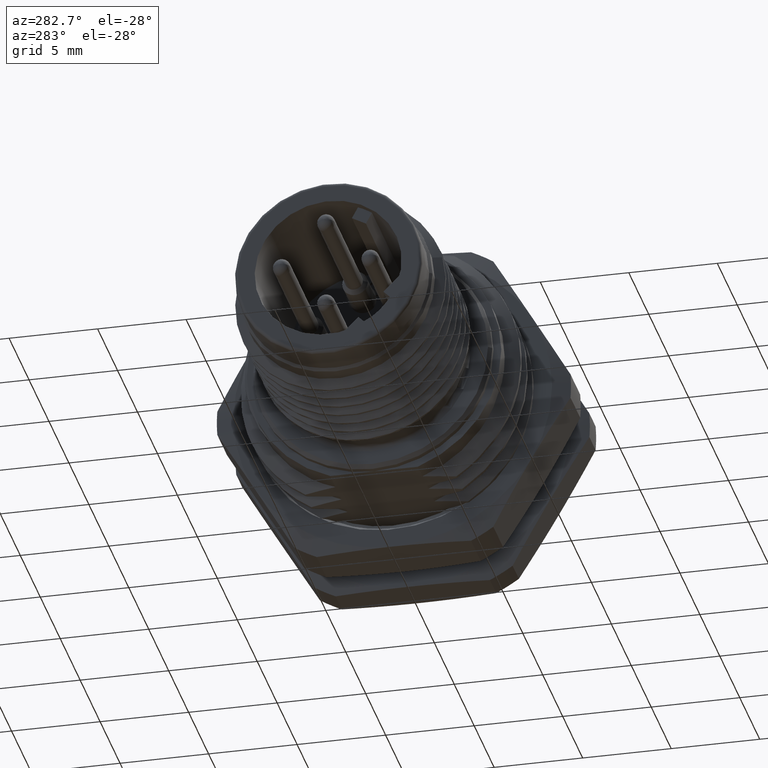
[diagram: clean part render]
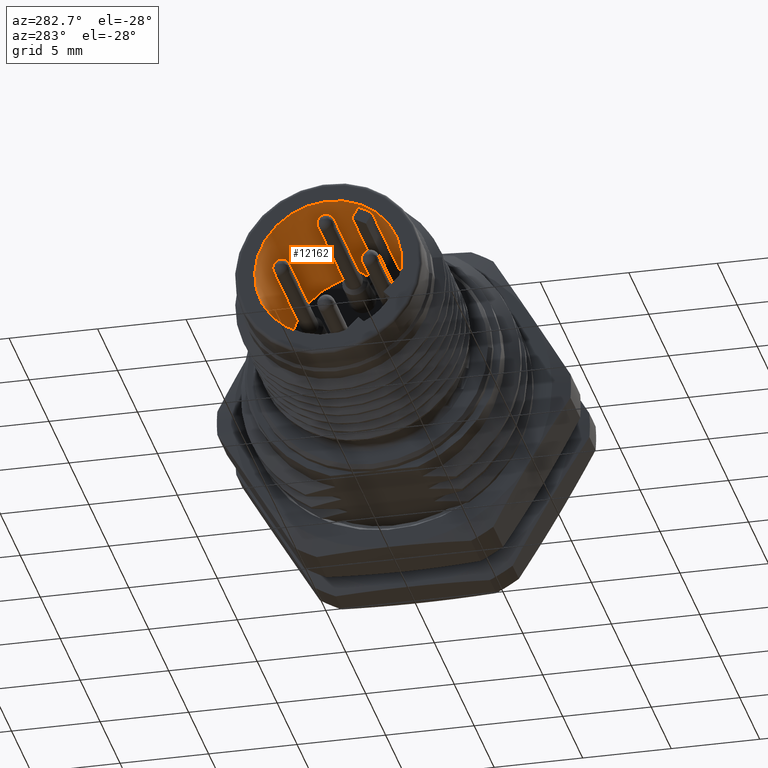
[diagram: same view with one face highlighted and labeled with its STEP entity id]
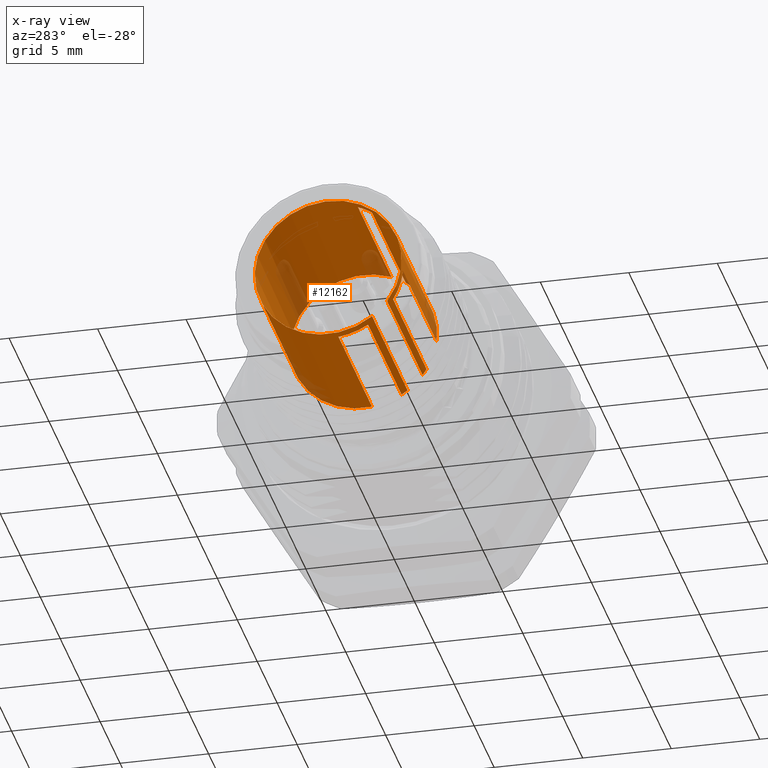
[diagram: x-ray of the same camera — body ghosted, the highlighted face saturated]
A machine part, auxiliary view. The second image highlights one B-rep face of the part: STEP entity #12162.
The next image is the same camera in x-ray: the body ghosted, the highlighted face saturated — about 12% of this face is hidden behind the body in this view.
In plain terms, the highlighted cylindrical surface (partial cylindrical patch) has radius 4.15 mm, axis along (-1, 0, 0).
Its self-contained STEP definition (entity closure, byte-faithful):
#26=CARTESIAN_POINT('',(7.3E0,0.E0,0.E0));
#27=DIRECTION('',(1.E0,0.E0,0.E0));
#28=DIRECTION('',(0.E0,-8.566584127936E-1,-5.158840604146E-1));
#29=AXIS2_PLACEMENT_3D('',#26,#27,#28);
#36=CARTESIAN_POINT('',(7.3E0,0.E0,0.E0));
#37=DIRECTION('',(1.E0,0.E0,0.E0));
#38=DIRECTION('',(0.E0,-5.974451597434E-1,-8.019097711708E-1));
#39=AXIS2_PLACEMENT_3D('',#36,#37,#38);
#53=CARTESIAN_POINT('',(7.3E0,0.E0,0.E0));
#54=DIRECTION('',(1.E0,0.E0,0.E0));
#55=DIRECTION('',(0.E0,-5.696387010222E-1,8.218952185636E-1));
#56=AXIS2_PLACEMENT_3D('',#53,#54,#55);
#704=DIRECTION('',(-1.E0,1.089075919394E-14,1.933638434555E-14));
#705=VECTOR('',#704,8.4E0);
#706=CARTESIAN_POINT('',(7.3E0,-4.122925797946E0,-4.732682797668E-1));
#707=LINE('',#706,#705);
#716=CARTESIAN_POINT('',(7.3E0,0.E0,0.E0));
#717=DIRECTION('',(-1.E0,0.E0,0.E0));
#718=DIRECTION('',(0.E0,-3.790518573123E-1,9.253754316320E-1));
#719=AXIS2_PLACEMENT_3D('',#716,#717,#718);
#721=DIRECTION('',(-1.E0,0.E0,0.E0));
#722=VECTOR('',#721,8.9E0);
#723=CARTESIAN_POINT('',(7.3E0,-2.479397412935E0,-3.327925550359E0));
#724=LINE('',#723,#722);
#725=CARTESIAN_POINT('',(-1.6E0,0.E0,0.E0));
#726=DIRECTION('',(1.E0,0.E0,0.E0));
#727=DIRECTION('',(0.E0,-5.974451597434E-1,-8.019097711708E-1));
#728=AXIS2_PLACEMENT_3D('',#725,#726,#727);
#730=DIRECTION('',(1.E0,1.791326138609E-14,-2.395087873349E-14));
#731=VECTOR('',#730,8.9E0);
#732=CARTESIAN_POINT('',(-1.6E0,-3.327925550359E0,-2.479397412935E0));
#733=LINE('',#732,#731);
#734=CARTESIAN_POINT('',(-1.1E0,0.E0,0.E0));
#735=DIRECTION('',(1.E0,0.E0,0.E0));
#736=DIRECTION('',(0.E0,-9.934760958905E-1,-1.140405493413E-1));
#737=AXIS2_PLACEMENT_3D('',#734,#735,#736);
#743=DIRECTION('',(1.E0,-1.115509800933E-14,-1.950820457556E-14));
#744=VECTOR('',#743,8.4E0);
#745=CARTESIAN_POINT('',(-1.1E0,-3.555132413094E0,-2.140918850721E0));
#746=LINE('',#745,#744);
#751=DIRECTION('',(1.E0,0.E0,0.E0));
#752=VECTOR('',#751,8.4E0);
#753=CARTESIAN_POINT('',(-1.1E0,-2.364000609242E0,3.410865157039E0));
#754=LINE('',#753,#752);
#759=DIRECTION('',(-1.E0,-2.675108811716E-14,-1.104936248317E-14));
#760=VECTOR('',#759,8.4E0);
#761=CARTESIAN_POINT('',(7.3E0,-1.573065207846E0,3.840308041273E0));
#762=LINE('',#761,#760);
#763=CARTESIAN_POINT('',(-1.1E0,0.E0,0.E0));
#764=DIRECTION('',(1.E0,0.E0,0.E0));
#765=DIRECTION('',(0.E0,-3.790518573124E-1,9.253754316320E-1));
#766=AXIS2_PLACEMENT_3D('',#763,#764,#765);
#792=DIRECTION('',(1.E0,0.E0,-1.089075919394E-14));
#793=VECTOR('',#792,8.4E0);
#794=CARTESIAN_POINT('',(-1.1E0,-4.732682797668E-1,-4.122925797946E0));
#795=LINE('',#794,#793);
#800=DIRECTION('',(-1.E0,0.E0,0.E0));
#801=VECTOR('',#800,8.4E0);
#802=CARTESIAN_POINT('',(7.3E0,-2.140918850721E0,-3.555132413094E0));
#803=LINE('',#802,#801);
#808=CARTESIAN_POINT('',(-1.1E0,0.E0,0.E0));
#809=DIRECTION('',(1.E0,0.E0,0.E0));
#810=DIRECTION('',(0.E0,-5.158840604146E-1,-8.566584127936E-1));
#811=AXIS2_PLACEMENT_3D('',#808,#809,#810);
#10437=CARTESIAN_POINT('',(-1.6E0,-2.479397412935E0,-3.327925550359E0));
#10438=CARTESIAN_POINT('',(-1.6E0,-3.327925550359E0,-2.479397412934E0));
#10439=VERTEX_POINT('',#10437);
#10440=VERTEX_POINT('',#10438);
#10445=CARTESIAN_POINT('',(7.3E0,-2.479397412935E0,-3.327925550359E0));
#10446=VERTEX_POINT('',#10445);
#10447=CARTESIAN_POINT('',(7.3E0,-3.327925550359E0,-2.479397412935E0));
#10448=VERTEX_POINT('',#10447);
#10449=CARTESIAN_POINT('',(-1.1E0,-4.122925797946E0,-4.732682797666E-1));
#10450=CARTESIAN_POINT('',(-1.1E0,-3.555132413094E0,-2.140918850720E0));
#10451=VERTEX_POINT('',#10449);
#10452=VERTEX_POINT('',#10450);
#10453=CARTESIAN_POINT('',(7.3E0,-4.122925797946E0,-4.732682797668E-1));
#10454=VERTEX_POINT('',#10453);
#10455=CARTESIAN_POINT('',(-1.1E0,-2.364000609242E0,3.410865157039E0));
#10456=CARTESIAN_POINT('',(7.3E0,-2.364000609242E0,3.410865157039E0));
#10457=VERTEX_POINT('',#10455);
#10458=VERTEX_POINT('',#10456);
#10459=CARTESIAN_POINT('',(-1.1E0,-1.573065207846E0,3.840308041272E0));
#10460=VERTEX_POINT('',#10459);
#10461=CARTESIAN_POINT('',(7.3E0,-1.573065207846E0,3.840308041273E0));
#10462=VERTEX_POINT('',#10461);
#10463=CARTESIAN_POINT('',(-1.1E0,-4.732682797668E-1,-4.122925797946E0));
#10464=CARTESIAN_POINT('',(7.3E0,-4.732682797668E-1,-4.122925797946E0));
#10465=VERTEX_POINT('',#10463);
#10466=VERTEX_POINT('',#10464);
#10467=CARTESIAN_POINT('',(-1.1E0,-2.140918850721E0,-3.555132413093E0));
#10468=VERTEX_POINT('',#10467);
#10469=CARTESIAN_POINT('',(7.3E0,-2.140918850721E0,-3.555132413094E0));
#10470=VERTEX_POINT('',#10469);
#10471=CARTESIAN_POINT('',(7.3E0,-3.555132413094E0,-2.140918850721E0));
#10472=VERTEX_POINT('',#10471);
#12128=CARTESIAN_POINT('',(7.478E0,0.E0,0.E0));
#12129=DIRECTION('',(-1.E0,0.E0,0.E0));
#12130=DIRECTION('',(0.E0,7.071067811865E-1,-7.071067811865E-1));
#12131=AXIS2_PLACEMENT_3D('',#12128,#12129,#12130);
#12132=CYLINDRICAL_SURFACE('',#12131,4.15E0);
#12134=ORIENTED_EDGE('',*,*,#12133,.F.);
#12135=ORIENTED_EDGE('',*,*,#12119,.F.);
#12136=ORIENTED_EDGE('',*,*,#11331,.F.);
#12138=ORIENTED_EDGE('',*,*,#12137,.F.);
#12140=ORIENTED_EDGE('',*,*,#12139,.F.);
#12142=ORIENTED_EDGE('',*,*,#12141,.F.);
#12143=ORIENTED_EDGE('',*,*,#11323,.T.);
#12145=ORIENTED_EDGE('',*,*,#12144,.F.);
#12147=ORIENTED_EDGE('',*,*,#12146,.F.);
#12149=ORIENTED_EDGE('',*,*,#12148,.F.);
#12150=ORIENTED_EDGE('',*,*,#11317,.F.);
#12152=ORIENTED_EDGE('',*,*,#12151,.T.);
#12154=ORIENTED_EDGE('',*,*,#12153,.T.);
#12156=ORIENTED_EDGE('',*,*,#12155,.T.);
#12157=ORIENTED_EDGE('',*,*,#11313,.F.);
#12159=ORIENTED_EDGE('',*,*,#12158,.F.);
#12160=EDGE_LOOP('',(#12134,#12135,#12136,#12138,#12140,#12142,#12143,#12145,
#12147,#12149,#12150,#12152,#12154,#12156,#12157,#12159));
#12161=FACE_OUTER_BOUND('',#12160,.F.);
#12162=ADVANCED_FACE('',(#12161),#12132,.F.);
#30=CIRCLE('',#29,4.15E0);
#40=CIRCLE('',#39,4.15E0);
#57=CIRCLE('',#56,4.15E0);
#720=CIRCLE('',#719,4.15E0);
#729=CIRCLE('',#728,4.15E0);
#738=CIRCLE('',#737,4.15E0);
#767=CIRCLE('',#766,4.15E0);
#812=CIRCLE('',#811,4.15E0);
#11313=EDGE_CURVE('',#10472,#10448,#30,.T.);
#11317=EDGE_CURVE('',#10446,#10470,#40,.T.);
#11323=EDGE_CURVE('',#10462,#10466,#720,.T.);
#11331=EDGE_CURVE('',#10458,#10454,#57,.T.);
#12119=EDGE_CURVE('',#10454,#10451,#707,.T.);
#12133=EDGE_CURVE('',#10451,#10452,#738,.T.);
#12137=EDGE_CURVE('',#10457,#10458,#754,.T.);
#12139=EDGE_CURVE('',#10460,#10457,#767,.T.);
#12141=EDGE_CURVE('',#10462,#10460,#762,.T.);
#12144=EDGE_CURVE('',#10465,#10466,#795,.T.);
#12146=EDGE_CURVE('',#10468,#10465,#812,.T.);
#12148=EDGE_CURVE('',#10470,#10468,#803,.T.);
#12151=EDGE_CURVE('',#10446,#10439,#724,.T.);
#12153=EDGE_CURVE('',#10439,#10440,#729,.T.);
#12155=EDGE_CURVE('',#10440,#10448,#733,.T.);
#12158=EDGE_CURVE('',#10452,#10472,#746,.T.);